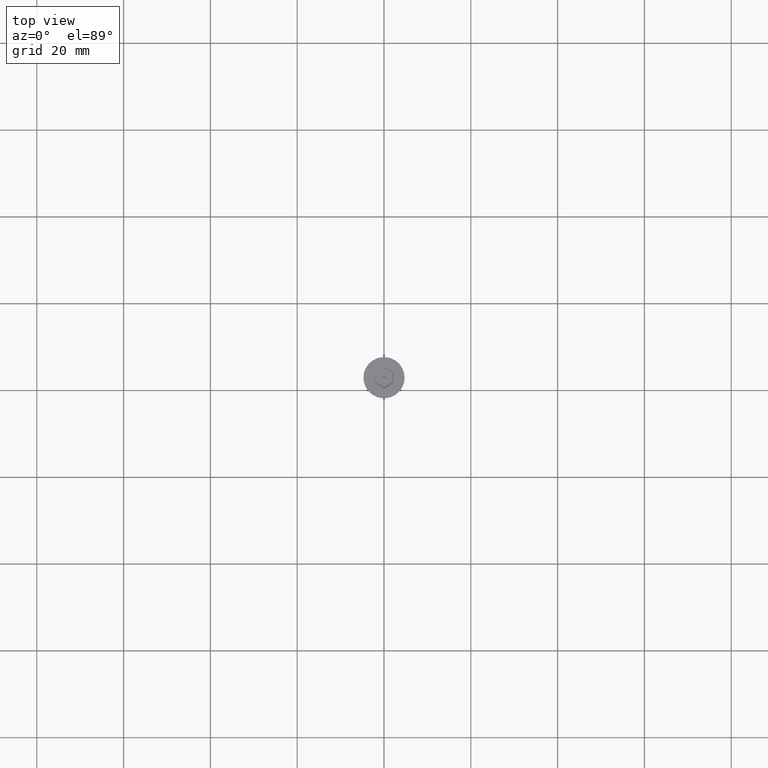
[diagram: clean part render]
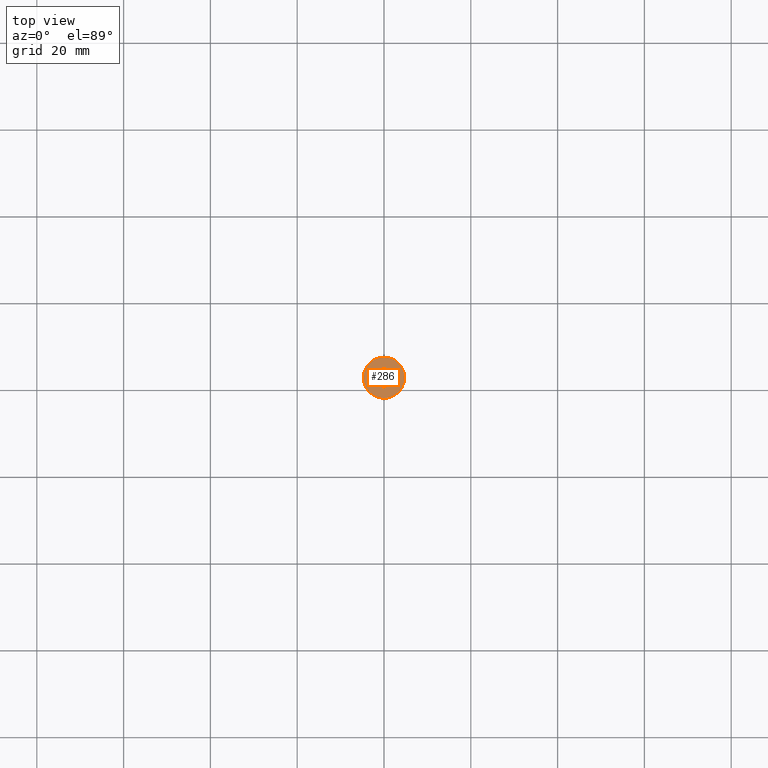
[diagram: same view with one face highlighted and labeled with its STEP entity id]
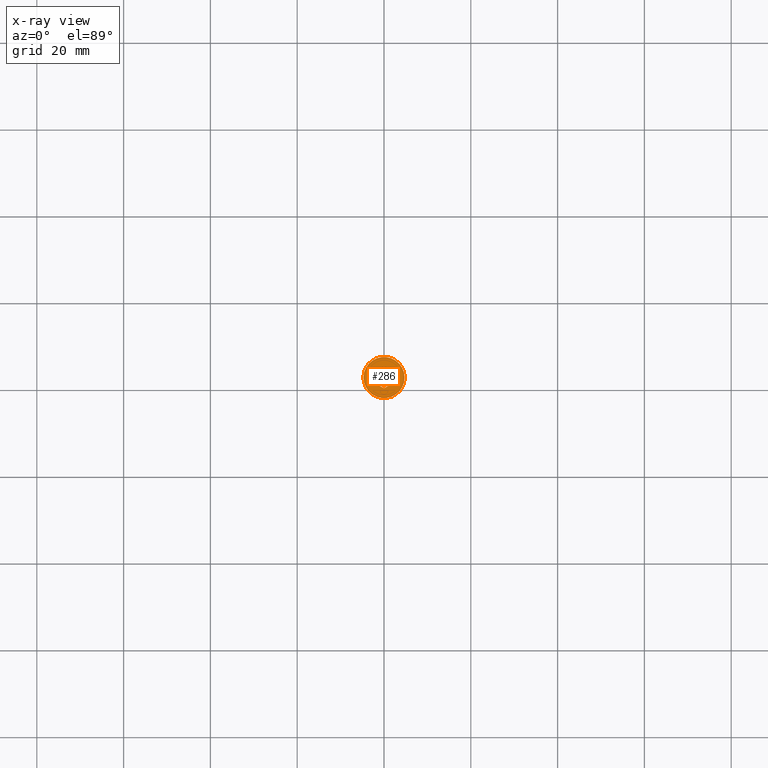
[diagram: x-ray of the same camera — body ghosted, the highlighted face saturated]
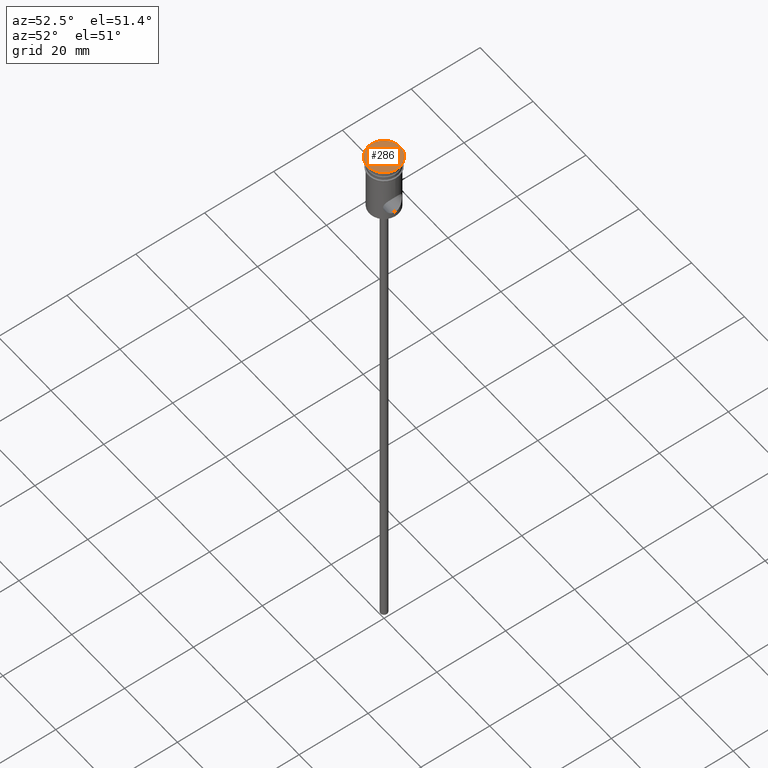
[diagram: same view with one face highlighted and labeled with its STEP entity id]
A machine part, top view. The second image highlights one B-rep face of the part: STEP entity #286.
The next image is the same camera in x-ray: the body ghosted, the highlighted face saturated — about 0% of this face is hidden behind the body in this view.
A second angle (auxiliary view) of the same face is appended — the face is thin or edge-on in the first view.
In plain terms, the highlighted planar face has unit normal (0, -0, 1).
Its self-contained STEP definition (entity closure, byte-faithful):
#5 = VERTEX_POINT ( 'NONE', #1351 ) ;
#6 = CARTESIAN_POINT ( 'NONE',  ( 2.149999999999992806, -1.125833024919770331, 0.000000000000000000 ) ) ;
#79 = ORIENTED_EDGE ( 'NONE', *, *, #1186, .T. ) ;
#97 = FACE_BOUND ( 'NONE', #278, .T. ) ;
#104 = FACE_OUTER_BOUND ( 'NONE', #266, .T. ) ;
#126 = LINE ( 'NONE', #996, #345 ) ;
#165 = VECTOR ( 'NONE', #383, 1000.000000000000000 ) ;
#181 = EDGE_CURVE ( 'NONE', #679, #1149, #1345, .T. ) ;
#193 = DIRECTION ( 'NONE',  ( 0.000000000000000000, -0.000000000000000000, 1.000000000000000000 ) ) ;
#211 = DIRECTION ( 'NONE',  ( 0.8660254037844385966, 0.5000000000000002220, 0.000000000000000000 ) ) ;
#233 = LINE ( 'NONE', #772, #780 ) ;
#266 = EDGE_LOOP ( 'NONE', ( #676, #336 ) ) ;
#278 = EDGE_LOOP ( 'NONE', ( #1192, #79, #1006, #755, #334, #725 ) ) ;
#286 = ADVANCED_FACE ( 'NONE', ( #97, #104 ), #864, .T. ) ;
#290 = CARTESIAN_POINT ( 'NONE',  ( -2.149999999999994138, 1.241303078757690859, 0.000000000000000000 ) ) ;
#317 = CARTESIAN_POINT ( 'NONE',  ( 0.000000000000000000, 0.000000000000000000, 0.000000000000000000 ) ) ;
#321 = LINE ( 'NONE', #6, #1392 ) ;
#334 = ORIENTED_EDGE ( 'NONE', *, *, #796, .T. ) ;
#336 = ORIENTED_EDGE ( 'NONE', *, *, #181, .T. ) ;
#345 = VECTOR ( 'NONE', #678, 1000.000000000000000 ) ;
#371 = CARTESIAN_POINT ( 'NONE',  ( -4.750000000000000000, 5.817072295949927426E-16, 0.000000000000000000 ) ) ;
#383 = DIRECTION ( 'NONE',  ( -0.8660254037844387076, -0.4999999999999998335, 0.000000000000000000 ) ) ;
#389 = CARTESIAN_POINT ( 'NONE',  ( -2.149999999999994582, -1.241303078757691303, 0.000000000000000000 ) ) ;
#461 = CARTESIAN_POINT ( 'NONE',  ( 0.09999999999999617528, -2.424871130596422564, 0.000000000000000000 ) ) ;
#469 = CARTESIAN_POINT ( 'NONE',  ( 2.149999999999993250, 1.241303078757691969, 0.000000000000000000 ) ) ;
#485 = CIRCLE ( 'NONE', #530, 4.750000000000000000 ) ;
#496 = DIRECTION ( 'NONE',  ( 1.000000000000000000, 0.000000000000000000, 0.000000000000000000 ) ) ;
#502 = DIRECTION ( 'NONE',  ( 0.8660254037844385966, -0.5000000000000001110, 0.000000000000000000 ) ) ;
#530 = AXIS2_PLACEMENT_3D ( 'NONE', #1141, #628, #496 ) ;
#560 = EDGE_CURVE ( 'NONE', #578, #1133, #727, .T. ) ;
#575 = VERTEX_POINT ( 'NONE', #389 ) ;
#578 = VERTEX_POINT ( 'NONE', #637 ) ;
#586 = VERTEX_POINT ( 'NONE', #1051 ) ;
#625 = VECTOR ( 'NONE', #211, 999.9999999999998863 ) ;
#628 = DIRECTION ( 'NONE',  ( -0.000000000000000000, -0.000000000000000000, 1.000000000000000000 ) ) ;
#637 = CARTESIAN_POINT ( 'NONE',  ( 3.449642192269546890E-16, 2.482606157515383494, 0.000000000000000000 ) ) ;
#646 = DIRECTION ( 'NONE',  ( 1.000000000000000000, 0.000000000000000000, 0.000000000000000000 ) ) ;
#655 = CARTESIAN_POINT ( 'NONE',  ( -0.09999999999999699407, 2.424871130596422564, 0.000000000000000000 ) ) ;
#676 = ORIENTED_EDGE ( 'NONE', *, *, #1417, .T. ) ;
#678 = DIRECTION ( 'NONE',  ( 9.630221786776664787E-17, 1.000000000000000000, 0.000000000000000000 ) ) ;
#679 = VERTEX_POINT ( 'NONE', #371 ) ;
#725 = ORIENTED_EDGE ( 'NONE', *, *, #1128, .T. ) ;
#727 = LINE ( 'NONE', #1068, #985 ) ;
#739 = AXIS2_PLACEMENT_3D ( 'NONE', #1173, #970, #646 ) ;
#755 = ORIENTED_EDGE ( 'NONE', *, *, #560, .T. ) ;
#756 = DIRECTION ( 'NONE',  ( 1.000000000000000000, 0.000000000000000000, 0.000000000000000000 ) ) ;
#772 = CARTESIAN_POINT ( 'NONE',  ( -2.049999999999997602, -1.299038105676652011, 0.000000000000000000 ) ) ;
#780 = VECTOR ( 'NONE', #1082, 1000.000000000000114 ) ;
#796 = EDGE_CURVE ( 'NONE', #1133, #5, #321, .T. ) ;
#814 = EDGE_CURVE ( 'NONE', #586, #575, #233, .T. ) ;
#864 = PLANE ( 'NONE',  #964 ) ;
#918 = CARTESIAN_POINT ( 'NONE',  ( 4.750000000000000000, 0.000000000000000000, 0.000000000000000000 ) ) ;
#960 = LINE ( 'NONE', #655, #625 ) ;
#964 = AXIS2_PLACEMENT_3D ( 'NONE', #317, #193, #756 ) ;
#970 = DIRECTION ( 'NONE',  ( -0.000000000000000000, -0.000000000000000000, 1.000000000000000000 ) ) ;
#985 = VECTOR ( 'NONE', #502, 1000.000000000000114 ) ;
#996 = CARTESIAN_POINT ( 'NONE',  ( -2.149999999999994138, 1.125833024919770109, 0.000000000000000000 ) ) ;
#1006 = ORIENTED_EDGE ( 'NONE', *, *, #1100, .T. ) ;
#1051 = CARTESIAN_POINT ( 'NONE',  ( -6.517717499969021618E-16, -2.482606157515383050, 0.000000000000000000 ) ) ;
#1068 = CARTESIAN_POINT ( 'NONE',  ( 2.049999999999996714, 1.299038105676652455, 0.000000000000000000 ) ) ;
#1082 = DIRECTION ( 'NONE',  ( -0.8660254037844385966, 0.5000000000000001110, 0.000000000000000000 ) ) ;
#1100 = EDGE_CURVE ( 'NONE', #1389, #578, #960, .T. ) ;
#1113 = LINE ( 'NONE', #461, #165 ) ;
#1128 = EDGE_CURVE ( 'NONE', #5, #586, #1113, .T. ) ;
#1133 = VERTEX_POINT ( 'NONE', #469 ) ;
#1141 = CARTESIAN_POINT ( 'NONE',  ( 0.000000000000000000, 0.000000000000000000, 0.000000000000000000 ) ) ;
#1149 = VERTEX_POINT ( 'NONE', #918 ) ;
#1173 = CARTESIAN_POINT ( 'NONE',  ( 0.000000000000000000, 0.000000000000000000, 0.000000000000000000 ) ) ;
#1186 = EDGE_CURVE ( 'NONE', #575, #1389, #126, .T. ) ;
#1192 = ORIENTED_EDGE ( 'NONE', *, *, #814, .T. ) ;
#1345 = CIRCLE ( 'NONE', #739, 4.750000000000000000 ) ;
#1351 = CARTESIAN_POINT ( 'NONE',  ( 2.149999999999992806, -1.241303078757692413, 0.000000000000000000 ) ) ;
#1389 = VERTEX_POINT ( 'NONE', #290 ) ;
#1392 = VECTOR ( 'NONE', #1407, 1000.000000000000000 ) ;
#1407 = DIRECTION ( 'NONE',  ( -1.926044357355332218E-16, -1.000000000000000000, 0.000000000000000000 ) ) ;
#1417 = EDGE_CURVE ( 'NONE', #1149, #679, #485, .T. ) ;